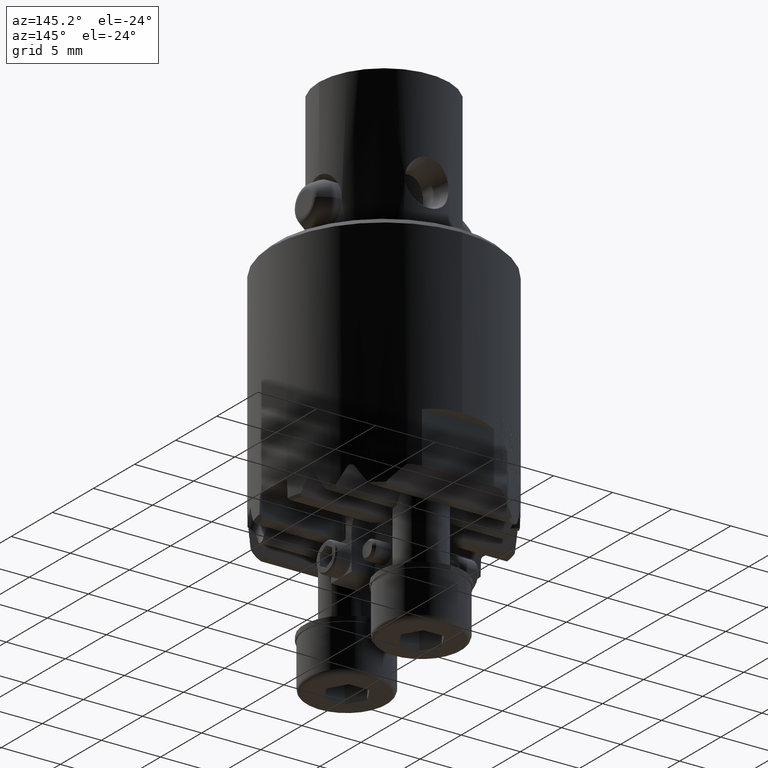
[diagram: clean part render]
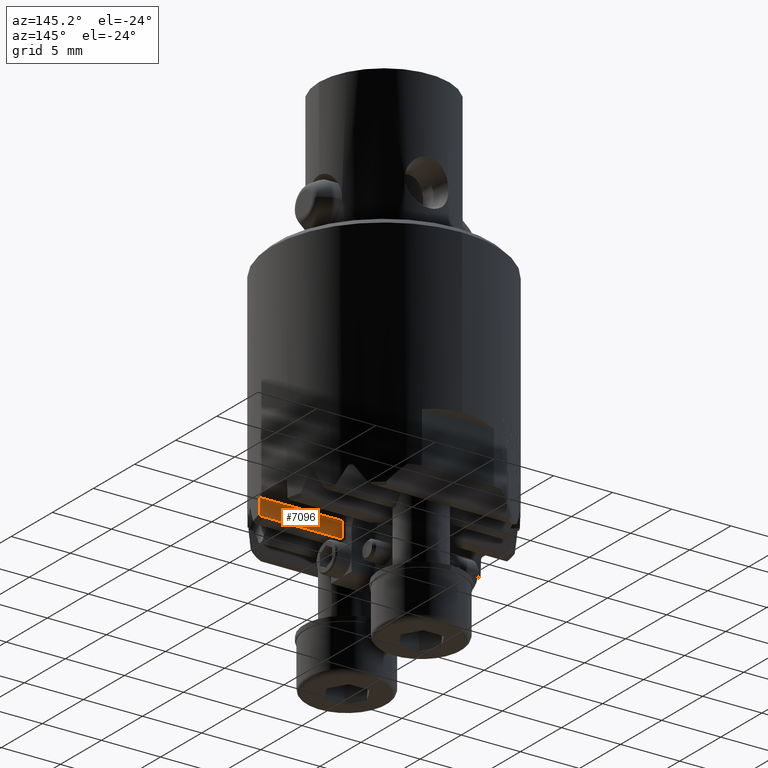
[diagram: same view with one face highlighted and labeled with its STEP entity id]
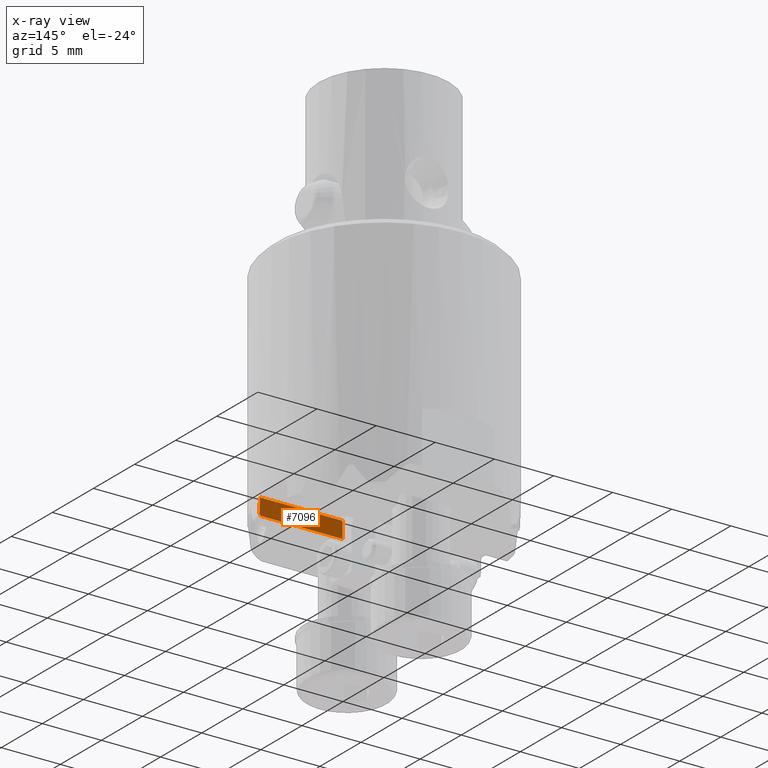
[diagram: x-ray of the same camera — body ghosted, the highlighted face saturated]
A machine part, auxiliary view. The second image highlights one B-rep face of the part: STEP entity #7096.
The next image is the same camera in x-ray: the body ghosted, the highlighted face saturated — about 0% of this face is hidden behind the body in this view.
In plain terms, the highlighted planar face has unit normal (0, 0.9994, -0.0349).
Its self-contained STEP definition (entity closure, byte-faithful):
#3766=EDGE_CURVE('NONE',#5524,#5560,#10440,.F.);
#3806=EDGE_CURVE('NONE',#5560,#5408,#10487,.F.);
#4280=EDGE_CURVE('NONE',#5408,#9378,#11014,.T.);
#5408=VERTEX_POINT('NONE',#12259);
#5524=VERTEX_POINT('NONE',#12384);
#5560=VERTEX_POINT('NONE',#12423);
#7096=ADVANCED_FACE('NONE',(#14140),#14141,.T.);
#7438=EDGE_CURVE('NONE',#7626,#5524,#14518,.F.);
#7626=VERTEX_POINT('NONE',#14728);
#8190=EDGE_CURVE('NONE',#7626,#9378,#15333,.F.);
#9378=VERTEX_POINT('NONE',#16663);
#10440=LINE('',#19797,#19798);
#10487=ELLIPSE('',#19933,272.210229304566,9.5);
#11014=(B_SPLINE_CURVE(2,(#21927,#21928,#21929),.UNSPECIFIED.,.F.,.F.)B_SPLINE_CURVE_WITH_KNOTS((3,3),(1.67168146917715,1.82395365881504),.UNSPECIFIED.)RATIONAL_B_SPLINE_CURVE((1.00503184801095,1.00507844921246,1.00509178965333))BOUNDED_CURVE()REPRESENTATION_ITEM('')GEOMETRIC_REPRESENTATION_ITEM()CURVE());
#12259=CARTESIAN_POINT('',(9.34731375801929,-1.69638601419107,-20.2));
#12384=CARTESIAN_POINT('',(2.36774102717844,-1.6524830802814,-18.9427844646995));
#12423=CARTESIAN_POINT('',(9.35517502077774,-1.6524830802814,-18.9427844646995));
#14140=FACE_OUTER_BOUND('',#34595,.T.);
#14141=PLANE('',#34596);
#14518=ELLIPSE('',#36119,57.3074166956981,2.0);
#14728=CARTESIAN_POINT('',(2.32552398548673,-1.70012183459618,-20.3069798993405));
#15333=LINE('',#38835,#38836);
#16663=CARTESIAN_POINT('',(9.23787921326766,-1.70012183459618,-20.3069798993405));
#19797=CARTESIAN_POINT('',(-9.501,-1.6524830802814,-18.9427844646995));
#19798=VECTOR('',#46309,1.0);
#19933=AXIS2_PLACEMENT_3D('',#46382,#46383,#46384);
#21927=CARTESIAN_POINT('',(9.34731375802363,-1.69638601419092,-20.1999999999958));
#21928=CARTESIAN_POINT('',(9.29228896281147,-1.6982649231441,-20.2538049126746));
#21929=CARTESIAN_POINT('',(9.23787921327173,-1.70012183459605,-20.3069798993365));
#34595=EDGE_LOOP('',(#50284,#50285,#50286,#50287,#50288));
#34596=AXIS2_PLACEMENT_3D('',#50289,#50290,#50291);
#36119=AXIS2_PLACEMENT_3D('',#50677,#50678,#50679);
#38835=CARTESIAN_POINT('',(-9.501,-1.70012183459618,-20.3069798993405));
#38836=VECTOR('',#51439,1.0);
#46309=DIRECTION('',(-1.0,2.76920173874876E-017,0.0));
#46382=CARTESIAN_POINT('',(0.0,0.0,28.3781395679798));
#46383=DIRECTION('',(-2.76751481587084E-017,-0.999390827019096,0.0348994967024946));
#46384=DIRECTION('',(9.66437469500047E-019,0.0348994967024946,0.999390827019096));
#50284=ORIENTED_EDGE('',*,*,#8190,.F.);
#50285=ORIENTED_EDGE('',*,*,#7438,.T.);
#50286=ORIENTED_EDGE('',*,*,#3766,.T.);
#50287=ORIENTED_EDGE('',*,*,#3806,.T.);
#50288=ORIENTED_EDGE('',*,*,#4280,.T.);
#50289=CARTESIAN_POINT('',(-9.501,-1.6524830802814,-18.9427844646995));
#50290=DIRECTION('',(2.76751481587084E-017,0.999390827019096,-0.0348994967024946));
#50291=DIRECTION('',(1.0,-2.76920173874876E-017,0.0));
#50677=CARTESIAN_POINT('',(0.85,-0.35,18.3554509189576));
#50678=DIRECTION('',(2.76751481587084E-017,0.999390827019096,-0.0348994967024946));
#50679=DIRECTION('',(-9.66437469500047E-019,-0.0348994967024946,-0.999390827019096));
#51439=DIRECTION('',(-1.0,2.76920173874876E-017,0.0));